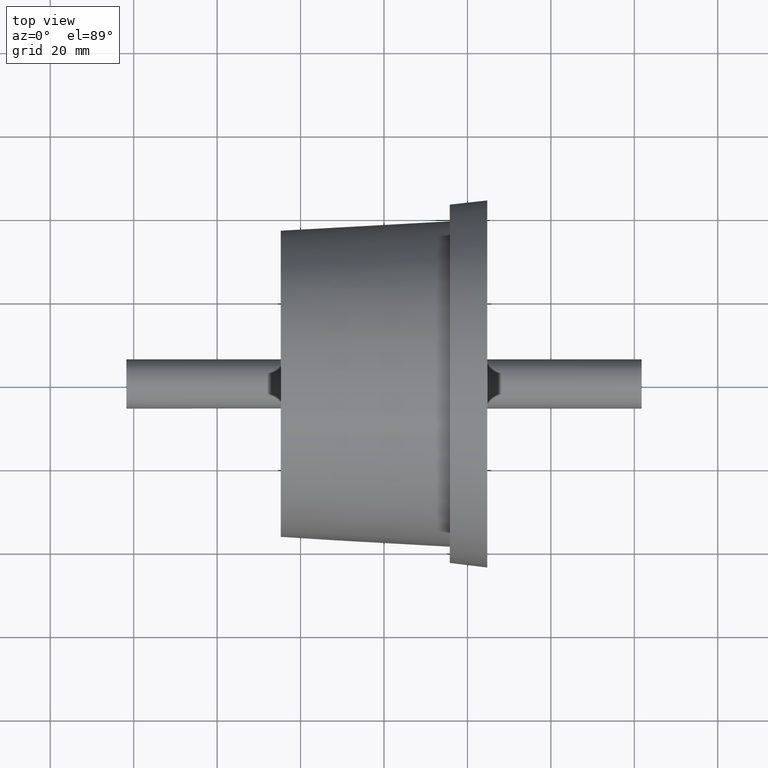
[diagram: clean part render]
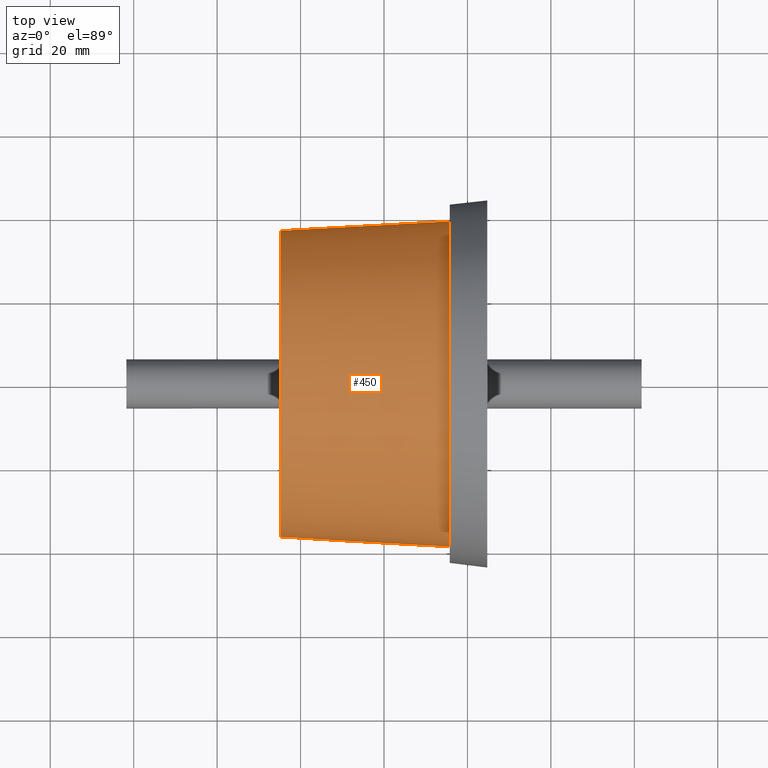
[diagram: same view with one face highlighted and labeled with its STEP entity id]
A machine part, top view. The second image highlights one B-rep face of the part: STEP entity #450.
In plain terms, the highlighted conical surface has half-angle 3.18 deg.
Its self-contained STEP definition (entity closure, byte-faithful):
#15=CONICAL_SURFACE('',#529,37.875,3.17983011986423);
#72=FACE_BOUND('',#187,.T.);
#111=FACE_OUTER_BOUND('',#186,.T.);
#186=EDGE_LOOP('',(#386));
#187=EDGE_LOOP('',(#387));
#233=CIRCLE('',#524,36.75);
#234=CIRCLE('',#530,39.);
#273=VERTEX_POINT('',#805);
#274=VERTEX_POINT('',#812);
#313=EDGE_CURVE('',#273,#273,#233,.T.);
#314=EDGE_CURVE('',#274,#274,#234,.T.);
#386=ORIENTED_EDGE('',*,*,#313,.T.);
#387=ORIENTED_EDGE('',*,*,#314,.F.);
#450=ADVANCED_FACE('',(#111,#72),#15,.T.);
#524=AXIS2_PLACEMENT_3D('',#806,#672,#673);
#529=AXIS2_PLACEMENT_3D('',#811,#682,#683);
#530=AXIS2_PLACEMENT_3D('',#813,#684,#685);
#672=DIRECTION('center_axis',(1.,1.83697019872103E-16,0.));
#673=DIRECTION('ref_axis',(0.,0.,-1.));
#682=DIRECTION('center_axis',(1.,1.83697019872103E-16,0.));
#683=DIRECTION('ref_axis',(0.,1.,0.));
#684=DIRECTION('center_axis',(1.,1.83697019872103E-16,0.));
#685=DIRECTION('ref_axis',(0.,0.,-1.));
#805=CARTESIAN_POINT('',(-24.75,36.75,0.));
#806=CARTESIAN_POINT('Origin',(-24.75,6.79678973526781E-15,0.));
#811=CARTESIAN_POINT('Origin',(-4.50000000000001,1.05166543876779E-14,0.));
#812=CARTESIAN_POINT('',(15.75,39.,0.));
#813=CARTESIAN_POINT('Origin',(15.75,1.4236519040088E-14,0.));